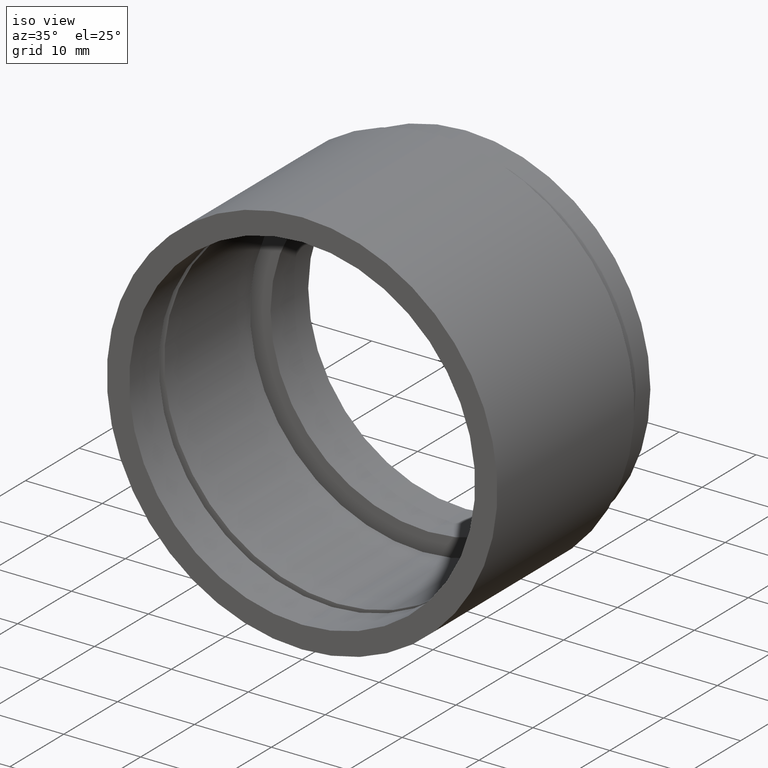
[diagram: clean part render]
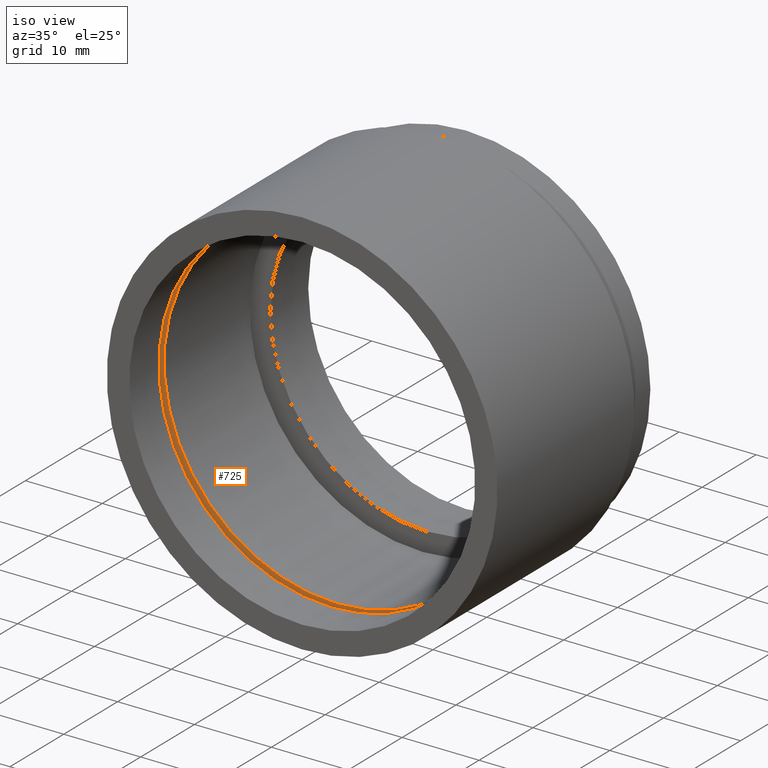
[diagram: same view with one face highlighted and labeled with its STEP entity id]
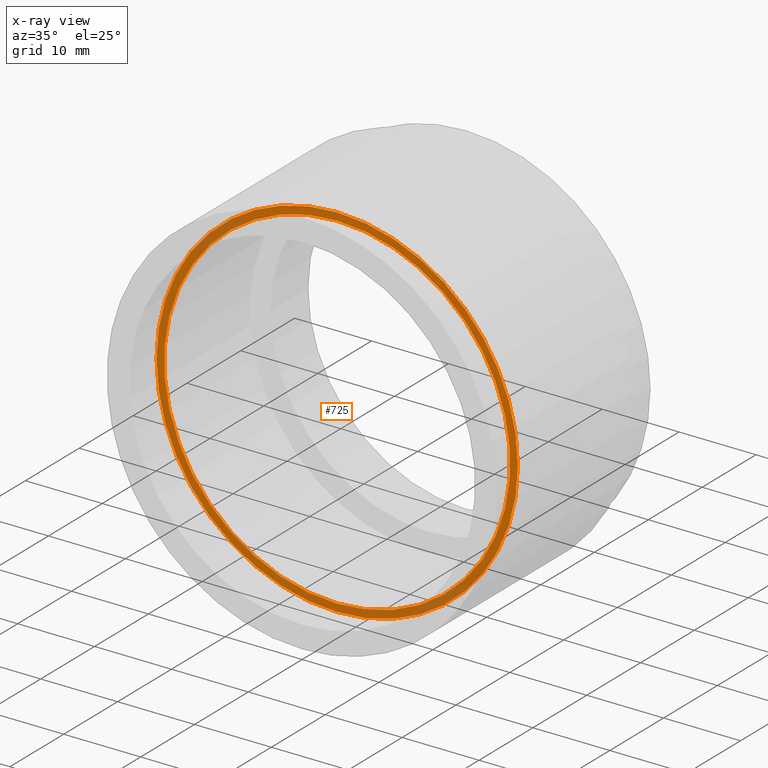
[diagram: x-ray of the same camera — body ghosted, the highlighted face saturated]
A machine part, iso view. The second image highlights one B-rep face of the part: STEP entity #725.
The next image is the same camera in x-ray: the body ghosted, the highlighted face saturated — about 11% of this face is hidden behind the body in this view.
In plain terms, the highlighted planar face has unit normal (-0, 1, 0).
Its self-contained STEP definition (entity closure, byte-faithful):
#5 = DIRECTION ( 'NONE',  ( -0.0000000000000000000, 1.000000000000000000, -0.0000000000000000000 ) ) ;
#9 = DIRECTION ( 'NONE',  ( -0.0000000000000000000, 1.000000000000000000, 0.0000000000000000000 ) ) ;
#35 = EDGE_CURVE ( 'NONE', #54, #797, #493, .T. ) ;
#54 = VERTEX_POINT ( 'NONE', #127 ) ;
#58 = AXIS2_PLACEMENT_3D ( 'NONE', #679, #315, #614 ) ;
#63 = DIRECTION ( 'NONE',  ( -0.0000000000000000000, 1.000000000000000000, -0.0000000000000000000 ) ) ;
#127 = CARTESIAN_POINT ( 'NONE',  ( 2.755455298081547100E-015, 6.499999999999977800, -22.50000000000002100 ) ) ;
#159 = EDGE_LOOP ( 'NONE', ( #304, #618 ) ) ;
#194 = FACE_BOUND ( 'NONE', #317, .T. ) ;
#205 = PLANE ( 'NONE',  #326 ) ;
#209 = EDGE_CURVE ( 'NONE', #797, #54, #449, .T. ) ;
#221 = DIRECTION ( 'NONE',  ( 0.0000000000000000000, 0.0000000000000000000, 1.000000000000000000 ) ) ;
#261 = CARTESIAN_POINT ( 'NONE',  ( 0.0000000000000000000, 6.499999999999977800, 0.0000000000000000000 ) ) ;
#290 = EDGE_CURVE ( 'NONE', #465, #361, #628, .T. ) ;
#304 = ORIENTED_EDGE ( 'NONE', *, *, #696, .F. ) ;
#315 = DIRECTION ( 'NONE',  ( -0.0000000000000000000, 1.000000000000000000, -0.0000000000000000000 ) ) ;
#317 = EDGE_LOOP ( 'NONE', ( #483, #735 ) ) ;
#326 = AXIS2_PLACEMENT_3D ( 'NONE', #330, #9, #502 ) ;
#330 = CARTESIAN_POINT ( 'NONE',  ( 23.49999999999986500, 6.499999999999985800, 0.0000000000000000000 ) ) ;
#353 = CARTESIAN_POINT ( 'NONE',  ( 2.877919977996263800E-015, 6.499999999999977800, -23.49999999999986500 ) ) ;
#361 = VERTEX_POINT ( 'NONE', #464 ) ;
#402 = DIRECTION ( 'NONE',  ( 0.0000000000000000000, 0.0000000000000000000, 1.000000000000000000 ) ) ;
#440 = DIRECTION ( 'NONE',  ( 0.0000000000000000000, 0.0000000000000000000, 1.000000000000000000 ) ) ;
#449 = CIRCLE ( 'NONE', #675, 22.50000000000002100 ) ;
#454 = CARTESIAN_POINT ( 'NONE',  ( 0.0000000000000000000, 6.499999999999977800, 22.50000000000002100 ) ) ;
#464 = CARTESIAN_POINT ( 'NONE',  ( 0.0000000000000000000, 6.499999999999977800, 23.49999999999986500 ) ) ;
#465 = VERTEX_POINT ( 'NONE', #353 ) ;
#466 = DIRECTION ( 'NONE',  ( -0.0000000000000000000, 1.000000000000000000, -0.0000000000000000000 ) ) ;
#471 = AXIS2_PLACEMENT_3D ( 'NONE', #634, #466, #402 ) ;
#483 = ORIENTED_EDGE ( 'NONE', *, *, #209, .T. ) ;
#493 = CIRCLE ( 'NONE', #58, 22.50000000000002100 ) ;
#502 = DIRECTION ( 'NONE',  ( 0.0000000000000000000, 0.0000000000000000000, 1.000000000000000000 ) ) ;
#583 = AXIS2_PLACEMENT_3D ( 'NONE', #697, #5, #440 ) ;
#613 = CIRCLE ( 'NONE', #583, 23.49999999999986500 ) ;
#614 = DIRECTION ( 'NONE',  ( 0.0000000000000000000, 0.0000000000000000000, 1.000000000000000000 ) ) ;
#618 = ORIENTED_EDGE ( 'NONE', *, *, #290, .F. ) ;
#628 = CIRCLE ( 'NONE', #471, 23.49999999999986500 ) ;
#634 = CARTESIAN_POINT ( 'NONE',  ( 0.0000000000000000000, 6.499999999999977800, 0.0000000000000000000 ) ) ;
#675 = AXIS2_PLACEMENT_3D ( 'NONE', #261, #63, #221 ) ;
#679 = CARTESIAN_POINT ( 'NONE',  ( 0.0000000000000000000, 6.499999999999977800, 0.0000000000000000000 ) ) ;
#696 = EDGE_CURVE ( 'NONE', #361, #465, #613, .T. ) ;
#697 = CARTESIAN_POINT ( 'NONE',  ( 0.0000000000000000000, 6.499999999999977800, 0.0000000000000000000 ) ) ;
#725 = ADVANCED_FACE ( 'NONE', ( #771, #194 ), #205, .F. ) ;
#735 = ORIENTED_EDGE ( 'NONE', *, *, #35, .T. ) ;
#771 = FACE_OUTER_BOUND ( 'NONE', #159, .T. ) ;
#797 = VERTEX_POINT ( 'NONE', #454 ) ;